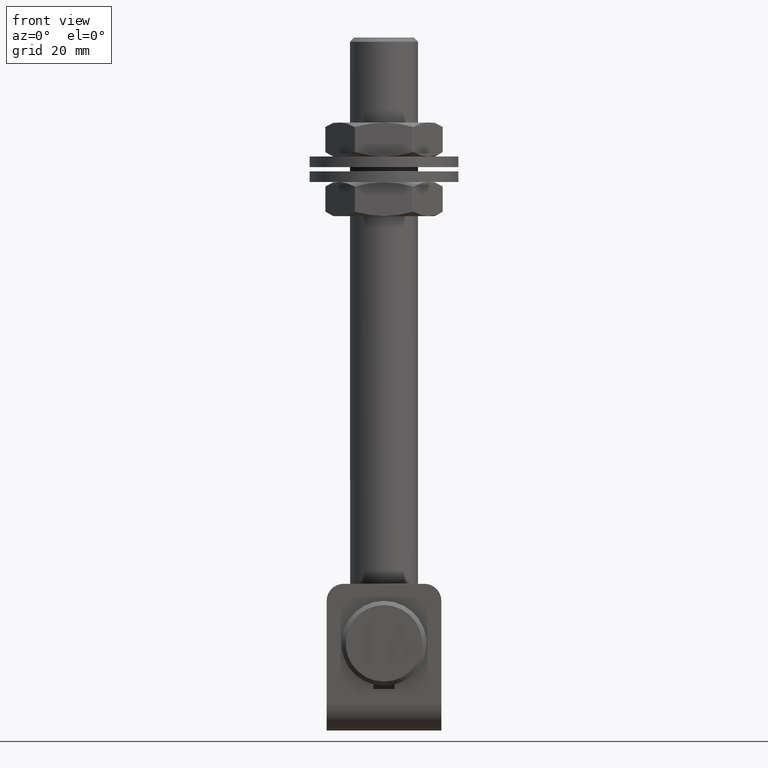
[diagram: clean part render]
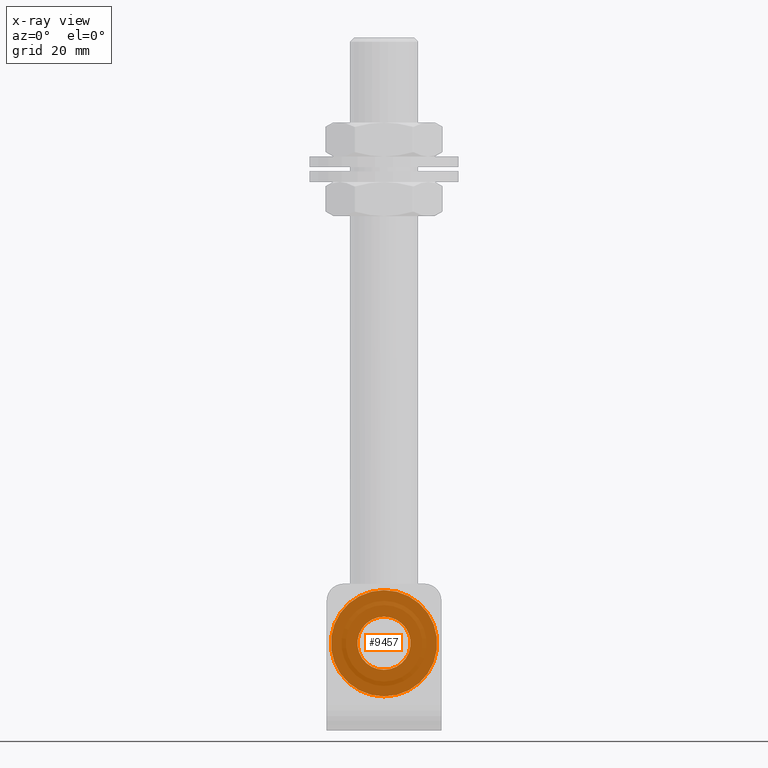
[diagram: x-ray — body ghosted, one internal face saturated and labeled with its STEP entity id]
A machine part, front view, then the same camera in x-ray: the body is ghosted and one INTERNAL B-rep face — a face not visible from any outside direction — is saturated and labeled: STEP entity #9457.
In plain terms, the highlighted planar face has unit normal (0, 1, 0).
Its self-contained STEP definition (entity closure, byte-faithful):
#65 = CARTESIAN_POINT ( 'NONE',  ( 0.000000000000000000, 10.75000000000000000, 12.50000000000000355 ) ) ;
#168 = CIRCLE ( 'NONE', #1184, 6.249999999999998224 ) ;
#689 = EDGE_CURVE ( 'NONE', #5127, #5127, #168, .T. ) ;
#804 = CARTESIAN_POINT ( 'NONE',  ( 0.000000000000000000, 10.75000000000000000, 18.75000000000000355 ) ) ;
#1184 = AXIS2_PLACEMENT_3D ( 'NONE', #65, #1795, #19046 ) ;
#1795 = DIRECTION ( 'NONE',  ( 0.000000000000000000, 1.000000000000000000, 0.000000000000000000 ) ) ;
#1849 = VERTEX_POINT ( 'NONE', #18763 ) ;
#2076 = CARTESIAN_POINT ( 'NONE',  ( 0.000000000000000000, 10.75000000000000000, 12.50000000000000355 ) ) ;
#2458 = DIRECTION ( 'NONE',  ( 0.000000000000000000, 1.000000000000000000, 0.000000000000000000 ) ) ;
#2601 = CARTESIAN_POINT ( 'NONE',  ( 0.000000000000000000, 10.75000000000000000, 12.50000000000000355 ) ) ;
#3092 = FACE_BOUND ( 'NONE', #4387, .T. ) ;
#4387 = EDGE_LOOP ( 'NONE', ( #6232 ) ) ;
#5127 = VERTEX_POINT ( 'NONE', #804 ) ;
#5636 = AXIS2_PLACEMENT_3D ( 'NONE', #2601, #2458, #17913 ) ;
#6232 = ORIENTED_EDGE ( 'NONE', *, *, #689, .F. ) ;
#7554 = CIRCLE ( 'NONE', #5636, 12.50000000000000000 ) ;
#9457 = ADVANCED_FACE ( 'NONE', ( #12326, #3092 ), #21067, .T. ) ;
#10784 = DIRECTION ( 'NONE',  ( 0.000000000000000000, -0.000000000000000000, 1.000000000000000000 ) ) ;
#12326 = FACE_OUTER_BOUND ( 'NONE', #18818, .T. ) ;
#12813 = ORIENTED_EDGE ( 'NONE', *, *, #15871, .T. ) ;
#15871 = EDGE_CURVE ( 'NONE', #1849, #1849, #7554, .T. ) ;
#17913 = DIRECTION ( 'NONE',  ( 0.000000000000000000, 0.000000000000000000, 1.000000000000000000 ) ) ;
#18763 = CARTESIAN_POINT ( 'NONE',  ( 0.000000000000000000, 10.75000000000000000, 25.00000000000000355 ) ) ;
#18818 = EDGE_LOOP ( 'NONE', ( #12813 ) ) ;
#19046 = DIRECTION ( 'NONE',  ( 0.000000000000000000, 0.000000000000000000, 1.000000000000000000 ) ) ;
#19544 = DIRECTION ( 'NONE',  ( 0.000000000000000000, 1.000000000000000000, 0.000000000000000000 ) ) ;
#21067 = PLANE ( 'NONE',  #22174 ) ;
#22174 = AXIS2_PLACEMENT_3D ( 'NONE', #2076, #19544, #10784 ) ;